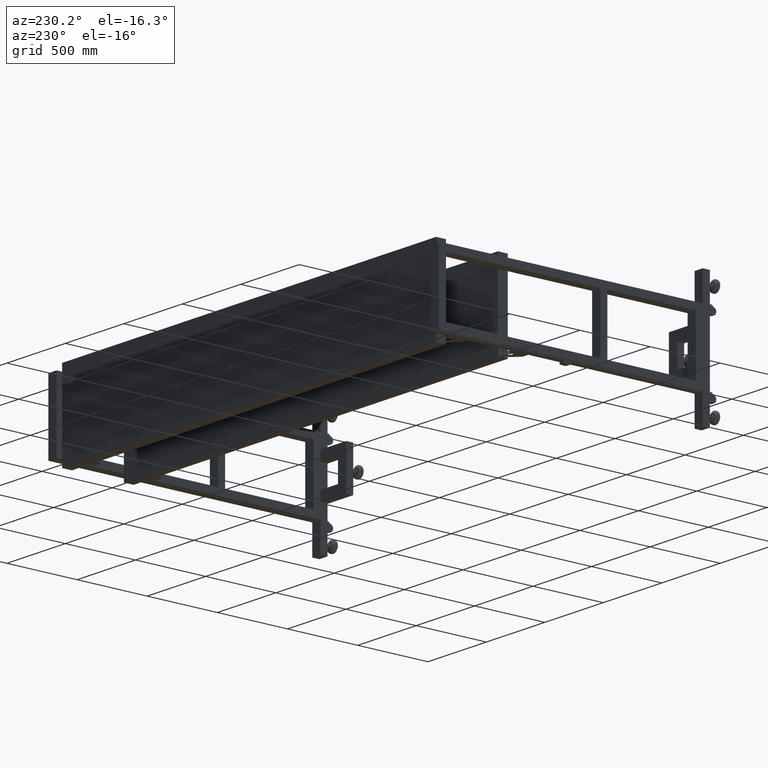
[diagram: clean part render]
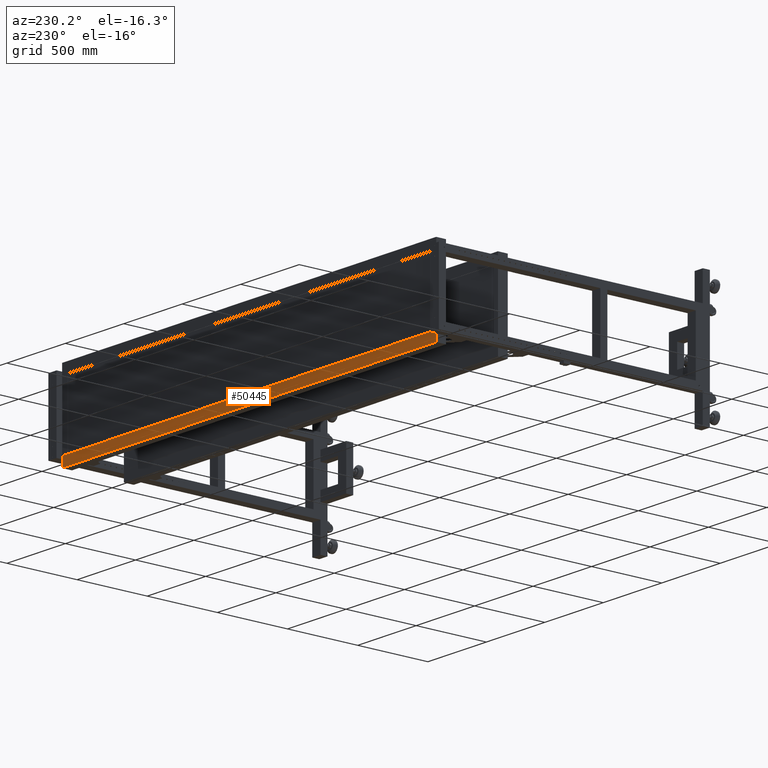
[diagram: same view with one face highlighted and labeled with its STEP entity id]
A machine part, auxiliary view. The second image highlights one B-rep face of the part: STEP entity #50445.
In plain terms, the highlighted planar face has unit normal (0, -1, -0).
Its self-contained STEP definition (entity closure, byte-faithful):
#2282 = CARTESIAN_POINT ( 'NONE',  ( -1266.172487437185964, 996.9410804020137675, -229.9999999999988631 ) ) ;
#6126 = VECTOR ( 'NONE', #60680, 1000.000000000000000 ) ;
#8186 = CARTESIAN_POINT ( 'NONE',  ( 1929.827512562814263, 996.9410804020151318, -299.9999999999988631 ) ) ;
#8594 = EDGE_LOOP ( 'NONE', ( #61310, #45708, #74581, #13392 ) ) ;
#9479 = AXIS2_PLACEMENT_3D ( 'NONE', #21536, #59600, #45657 ) ;
#9658 = PLANE ( 'NONE',  #9479 ) ;
#11958 = LINE ( 'NONE', #49997, #6126 ) ;
#13392 = ORIENTED_EDGE ( 'NONE', *, *, #54762, .T. ) ;
#14004 = EDGE_CURVE ( 'NONE', #52047, #37036, #11958, .T. ) ;
#15098 = DIRECTION ( 'NONE',  ( -1.817302869021689462E-30, 4.000000000000000311E-15, -1.000000000000000000 ) ) ;
#18262 = VECTOR ( 'NONE', #15098, 1000.000000000000000 ) ;
#21226 = LINE ( 'NONE', #22432, #74507 ) ;
#21536 = CARTESIAN_POINT ( 'NONE',  ( 1929.827512562814263, 996.9410804020151318, -299.9999999999988631 ) ) ;
#22126 = DIRECTION ( 'NONE',  ( 0.000000000000000000, 4.000000000000000311E-15, -1.000000000000000000 ) ) ;
#22432 = CARTESIAN_POINT ( 'NONE',  ( 1929.827512562814263, 996.9410804020151318, -299.9999999999988631 ) ) ;
#24484 = VECTOR ( 'NONE', #22126, 1000.000000000000000 ) ;
#34277 = LINE ( 'NONE', #41257, #18262 ) ;
#37036 = VERTEX_POINT ( 'NONE', #2282 ) ;
#40125 = CARTESIAN_POINT ( 'NONE',  ( 1929.827512562814263, 996.9410804020149044, -229.9999999999988631 ) ) ;
#41249 = DIRECTION ( 'NONE',  ( -1.000000000000000000, -4.543257172554223644E-16, 0.000000000000000000 ) ) ;
#41257 = CARTESIAN_POINT ( 'NONE',  ( 1929.827512562814263, 996.9410804020151318, -299.9999999999988631 ) ) ;
#44686 = VERTEX_POINT ( 'NONE', #8186 ) ;
#45657 = DIRECTION ( 'NONE',  ( -1.000000000000000000, -4.543257172554223644E-16, 0.000000000000000000 ) ) ;
#45708 = ORIENTED_EDGE ( 'NONE', *, *, #77685, .F. ) ;
#47068 = LINE ( 'NONE', #72050, #24484 ) ;
#47347 = VERTEX_POINT ( 'NONE', #57270 ) ;
#49997 = CARTESIAN_POINT ( 'NONE',  ( 1929.827512562814263, 996.9410804020149044, -229.9999999999988631 ) ) ;
#50445 = ADVANCED_FACE ( 'NONE', ( #77625 ), #9658, .F. ) ;
#52047 = VERTEX_POINT ( 'NONE', #40125 ) ;
#54762 = EDGE_CURVE ( 'NONE', #52047, #44686, #34277, .T. ) ;
#57270 = CARTESIAN_POINT ( 'NONE',  ( -1266.172487437185964, 996.9410804020139949, -299.9999999999988631 ) ) ;
#59600 = DIRECTION ( 'NONE',  ( 4.543257172554223644E-16, -1.000000000000000000, -4.000000000000000311E-15 ) ) ;
#60680 = DIRECTION ( 'NONE',  ( -1.000000000000000000, -4.543257172554223644E-16, 0.000000000000000000 ) ) ;
#61310 = ORIENTED_EDGE ( 'NONE', *, *, #80052, .T. ) ;
#72050 = CARTESIAN_POINT ( 'NONE',  ( -1266.172487437185964, 996.9410804020139949, -299.9999999999988631 ) ) ;
#74507 = VECTOR ( 'NONE', #41249, 1000.000000000000000 ) ;
#74581 = ORIENTED_EDGE ( 'NONE', *, *, #14004, .F. ) ;
#77625 = FACE_OUTER_BOUND ( 'NONE', #8594, .T. ) ;
#77685 = EDGE_CURVE ( 'NONE', #37036, #47347, #47068, .T. ) ;
#80052 = EDGE_CURVE ( 'NONE', #44686, #47347, #21226, .T. ) ;